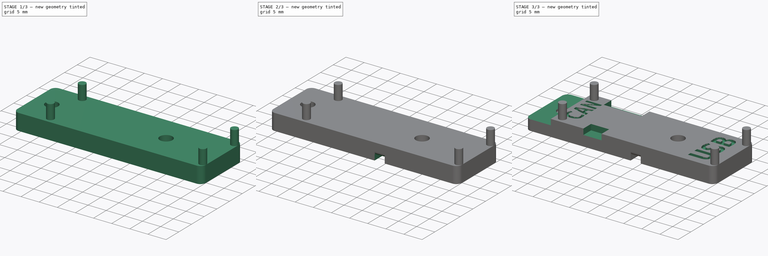
[diagram: build sequence overview — one tinted view per stage of 3, left to right]
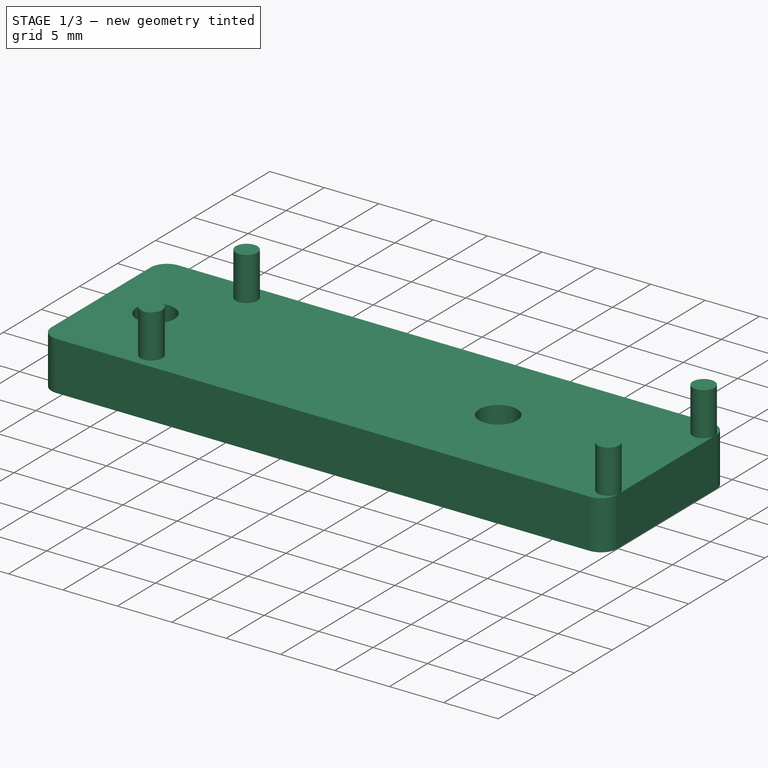
[diagram: stage 1 of 3 — iso view after this stage's code; geometry added in this stage tinted green]
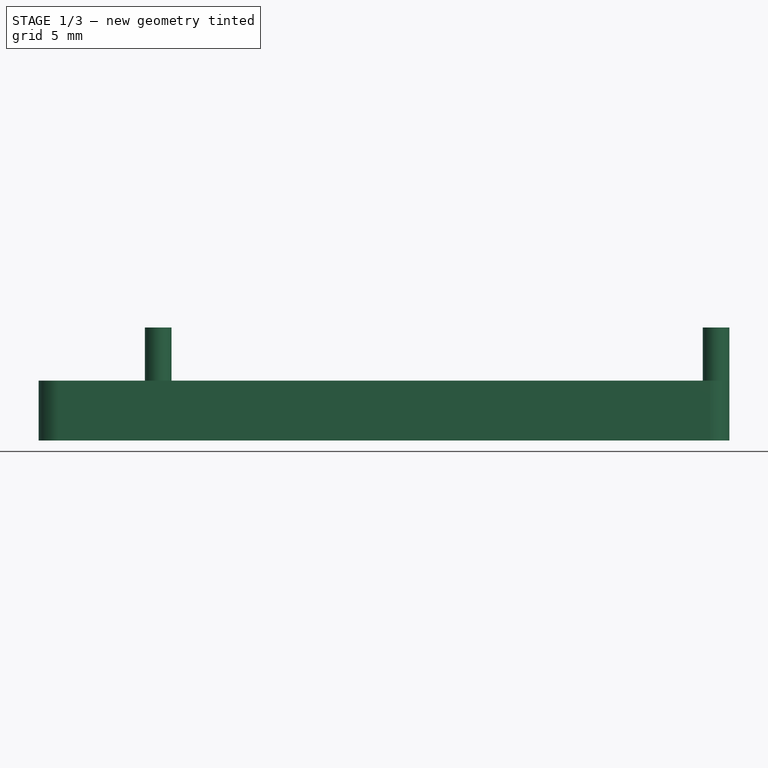
[diagram: stage 1 of 3 — front view after this stage's code; geometry added in this stage tinted green]
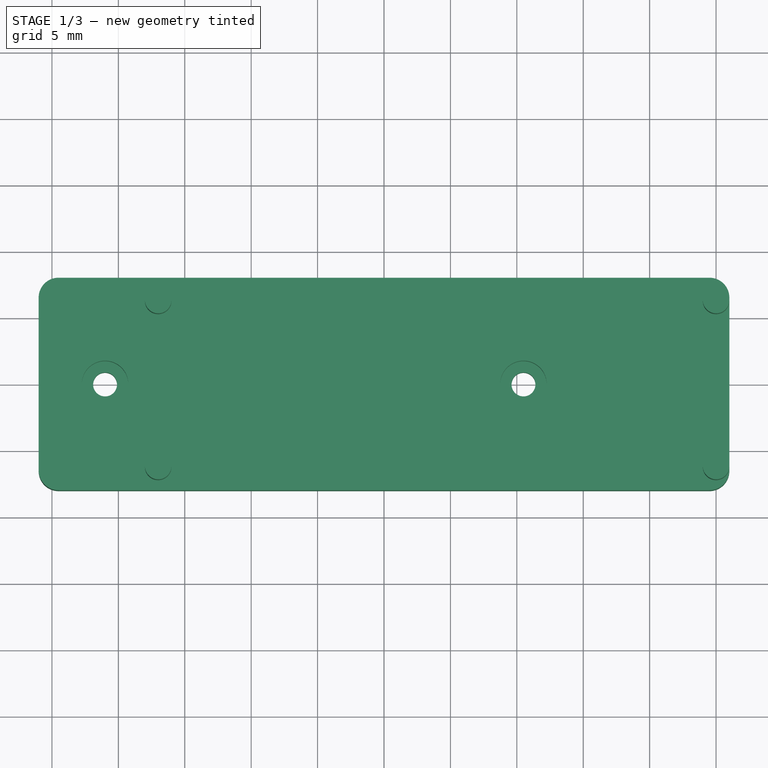
[diagram: stage 1 of 3 — top view after this stage's code; geometry added in this stage tinted green]
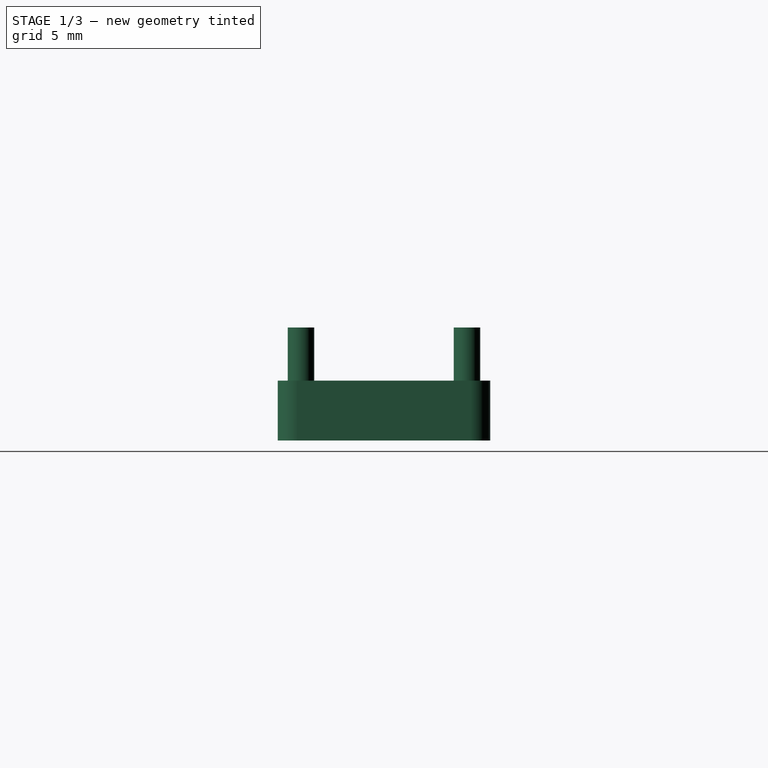
[diagram: stage 1 of 3 — right view after this stage's code; geometry added in this stage tinted green]
FCSTD DOCUMENT  (FreeCAD 2023.811R14555 (Git shallow))
Label: MKS_canable_pro_2.0_RailMount
License: All rights reserved
objects: Sketcher::SketchObject×5, PartDesign::Pocket×5, PartDesign::Pad×2, Part::Part2DObjectPython×2, PartDesign::Fillet×1, PartDesign::Body×1
note: 37 computed .brp shape members not serialized (recipe doc carries the construction recipe); baked Part::Feature solids carry a one-line shape summary decoded from their .brp

FEATURE [Sketcher::SketchObject] Sketch
  ArcFitTolerance = 1e-06
  AttachmentSupport = -> [XY_Plane]
  ExternalBSplineMaxDegree = 5
  ExternalBSplineTolerance = 0.0001
  FullyConstrained = true
  InternalTolerance = 1e-06
  InvalidShape = false
  MakeInternals = false
  MapMode = 5
  Support = -> [XY_Plane]
  TreeRank = 11
  ValidateShape = false
  sketch-geometry (12):
    g0: ArcOfCircle CenterX=-24.5 CenterY=6.5 CenterZ=0 NormalX=0 NormalY=0 NormalZ=1 AngleXU=0 Radius=1.5 StartAngle=1.5708 EndAngle=3.14159
    g1: LineSegment StartX=-24.5 StartY=8 StartZ=0 EndX=24.5 EndY=8 EndZ=0
    g2: ArcOfCircle CenterX=24.5 CenterY=6.5 CenterZ=0 NormalX=0 NormalY=0 NormalZ=1 AngleXU=0 Radius=1.5 StartAngle=0 EndAngle=1.5708
    g3: LineSegment StartX=26 StartY=6.5 StartZ=0 EndX=26 EndY=-6.5 EndZ=0
    g4: ArcOfCircle CenterX=24.5 CenterY=-6.5 CenterZ=0 NormalX=0 NormalY=0 NormalZ=1 AngleXU=0 Radius=1.5 StartAngle=4.71239 EndAngle=6.28319
    g5: LineSegment StartX=24.5 StartY=-8 StartZ=0 EndX=-24.5 EndY=-8 EndZ=0
    g6: ArcOfCircle CenterX=-24.5 CenterY=-6.5 CenterZ=0 NormalX=0 NormalY=0 NormalZ=1 AngleXU=0 Radius=1.5 StartAngle=3.14159 EndAngle=4.71239
    g7: LineSegment StartX=-26 StartY=-6.5 StartZ=0 EndX=-26 EndY=6.5 EndZ=0
    g8: GeomPoint [constr] X=-26 Y=8 Z=0
    g9: GeomPoint [constr] X=26 Y=-8 Z=0
    g10: Circle CenterX=-21 CenterY=0 CenterZ=0 NormalX=0 NormalY=0 NormalZ=1 AngleXU=0 Radius=0.9
    g11: Circle CenterX=10.5 CenterY=0 CenterZ=0 NormalX=0 NormalY=0 NormalZ=1 AngleXU=0 Radius=0.9
  constraints (29):
    c: Tangent(g0,g1) = 1.5708
    c: Tangent(g1,g2) = 1.5708
    c: Tangent(g2,g3) = 1.5708
    c: Tangent(g3,g4) = 1.5708
    c: Tangent(g4,g5) = 1.5708
    c: Tangent(g5,g6) = 1.5708
    c: Tangent(g6,g7) = 1.5708
    c: Tangent(g7,g0) = 1.5708
    c: Horizontal(g1)
    c: Horizontal(g5)
    c: Vertical(g3)
    c: Vertical(g7)
    c: Equal(g0,g2)
    c: Equal(g2,g4)
    c: Equal(g4,g6)
    c: PointOnObject(g8,g1)
    c: PointOnObject(g8,g7)
    c: PointOnObject(g9,g3)
    c: PointOnObject(g9,g5)
    c: Symmetric(g4,g0,g-1)
    c: DistanceY(g5,g0) = 16
    c: DistanceX(g6,g3) = 52
    c: Radius(g2) = 1.5
    c: PointOnObject(g10,g-1)
    c: PointOnObject(g11,g-1)
    c: DistanceX(g10,g11) = 31.5
    c: Equal(g11,g10)
    c: Diameter(g11) = 1.8
    c: DistanceX(g6,g10) = 5
FEATURE [PartDesign::Pad] Pad  label="Base_pd"
  AddSubType = 0
  AlongSketchNormal = false
  AutoTaperInnerAngle = true
  CheckUpToFaceLimits = true
  ClaimChildren = false
  Direction = (0,0,1)
  Fit = 0
  FitJoin = 0
  InnerFit = 0
  InnerFitJoin = 0
  InvalidShape = false
  Length = 4.5
  Length2 = 10
  Linearize = true
  NewSolid = false
  Profile = -> Sketch
  ReferenceAxis = -> Sketch [N_Axis]
  Suppress = false
  TaperInnerAngle = 0
  TaperInnerAngleRev = 0
  TreeRank = 12
  Type = 0
  ValidateShape = true
  _ProfileBasedVersion = 1
FEATURE [Sketcher::SketchObject] Sketch001
  ArcFitTolerance = 1e-06
  AttachmentSupport = -> [Pad]
  ExternalBSplineMaxDegree = 5
  ExternalBSplineTolerance = 0.0001
  ExternalGeometry = -> [Pad]
  FullyConstrained = true
  InternalTolerance = 1e-06
  InvalidShape = false
  MakeInternals = false
  MapMode = 5
  Placement = pos=(0,0,4.5) rot=(0,0,1;0rad)
  Support = -> [Pad]
  TreeRank = 13
  ValidateShape = false
  sketch-geometry (2):
    g0: Circle CenterX=-21 CenterY=0 CenterZ=0 NormalX=0 NormalY=0 NormalZ=1 AngleXU=0 Radius=1.75
    g1: Circle CenterX=10.5 CenterY=0 CenterZ=0 NormalX=0 NormalY=0 NormalZ=1 AngleXU=0 Radius=1.75
  constraints (4):
    c: Coincident(g0,g-3)
    c: Coincident(g1,g-4)
    c: Equal(g0,g1)
    c: Diameter(g1) = 3.5
FEATURE [PartDesign::Pocket] Pocket  label="Counterbore"
  AddSubType = 1
  AlongSketchNormal = false
  AutoTaperInnerAngle = true
  BaseFeature = -> Pad
  CheckUpToFaceLimits = true
  ClaimChildren = false
  Direction = (0,0,-1)
  Fit = 0
  FitJoin = 0
  InnerFit = 0
  InnerFitJoin = 0
  InvalidShape = false
  Length = 2.2
  Length2 = 10
  Linearize = true
  NewSolid = false
  Profile = -> Sketch001
  ReferenceAxis = -> Sketch001 [N_Axis]
  Suppress = false
  TaperInnerAngle = 0
  TaperInnerAngleRev = 0
  TreeRank = 14
  Type = 0
  ValidateShape = true
  _ProfileBasedVersion = 1
  _Version = 1
FEATURE [Sketcher::SketchObject] Sketch002
  ArcFitTolerance = 1e-06
  AttachmentSupport = -> [Pocket]
  ExternalBSplineMaxDegree = 5
  ExternalBSplineTolerance = 0.0001
  ExternalGeometry = -> [Pocket]
  FullyConstrained = true
  InternalTolerance = 1e-06
  InvalidShape = false
  MakeInternals = false
  MapMode = 5
  Placement = pos=(0,0,4.5) rot=(0,0,1;0rad)
  Support = -> [Pocket]
  TreeRank = 15
  ValidateShape = false
  sketch-geometry (4):
    g0: Circle CenterX=-17 CenterY=6.25 CenterZ=0 NormalX=0 NormalY=0 NormalZ=1 AngleXU=0 Radius=1
    g1: Circle CenterX=-17 CenterY=-6.25 CenterZ=0 NormalX=0 NormalY=0 NormalZ=1 AngleXU=0 Radius=1
    g2: Circle CenterX=25 CenterY=6.25 CenterZ=0 NormalX=0 NormalY=0 NormalZ=1 AngleXU=0 Radius=1
    g3: Circle CenterX=25 CenterY=-6.25 CenterZ=0 NormalX=0 NormalY=0 NormalZ=1 AngleXU=0 Radius=1
  constraints (10):
    c: Equal(g2,g1)
    c: Equal(g1,g0)
    c: Equal(g0,g3)
    c: Diameter(g2) = 2
    c: Symmetric(g0,g1,g-1)
    c: Symmetric(g2,g3,g-1)
    c: Horizontal(g0,g2)
    c: DistanceY(g1,g0) = 12.5
    c: DistanceX(g-3,g1) = 9
    c: DistanceX(g-3,g3) = 51
FEATURE [PartDesign::Pad] Pad001  label="LocatinPins_pd"
  AddSubType = 0
  AlongSketchNormal = false
  AutoTaperInnerAngle = true
  BaseFeature = -> Pocket
  CheckUpToFaceLimits = true
  ClaimChildren = false
  Direction = (0,0,1)
  Fit = 0
  FitJoin = 0
  InnerFit = 0
  InnerFitJoin = 0
  InvalidShape = false
  Length = 4
  Length2 = 10
  Linearize = true
  NewSolid = false
  Profile = -> Sketch002
  ReferenceAxis = -> Sketch002 [N_Axis]
  Suppress = false
  TaperInnerAngle = 0
  TaperInnerAngleRev = 0
  TreeRank = 16
  Type = 0
  ValidateShape = true
  _ProfileBasedVersion = 1
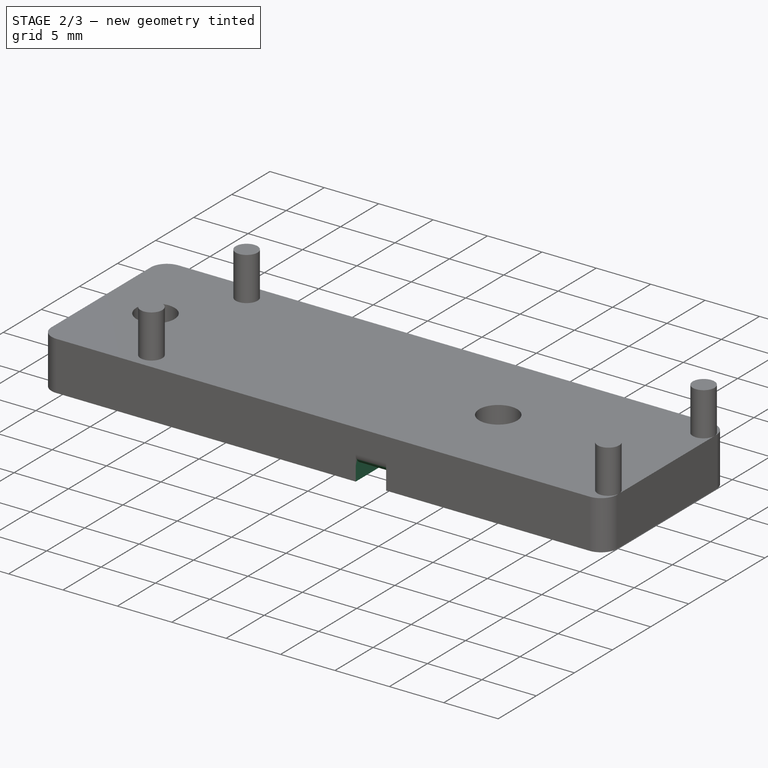
[diagram: stage 2 of 3 — iso view after this stage's code; geometry added in this stage tinted green]
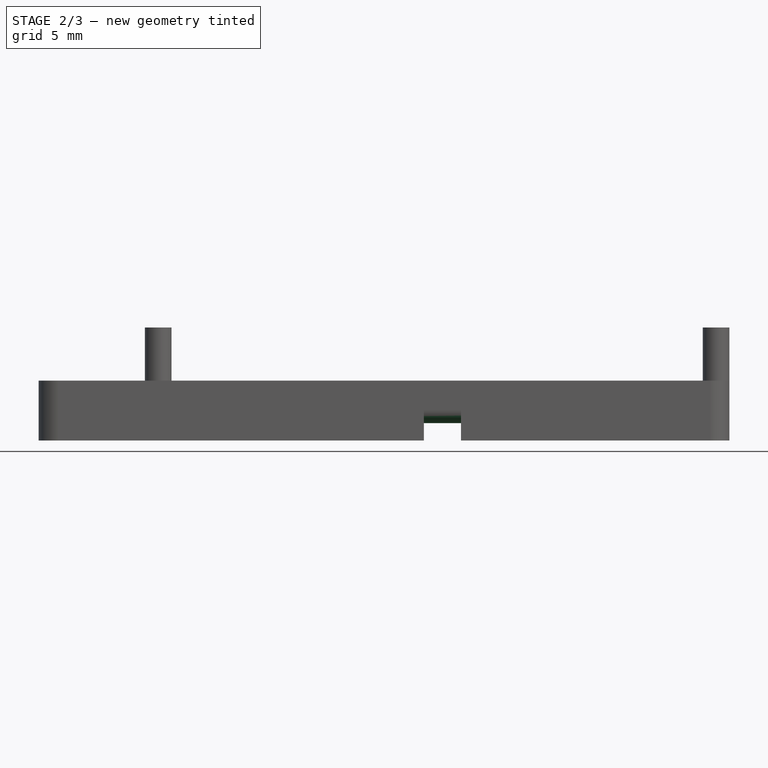
[diagram: stage 2 of 3 — front view after this stage's code; geometry added in this stage tinted green]
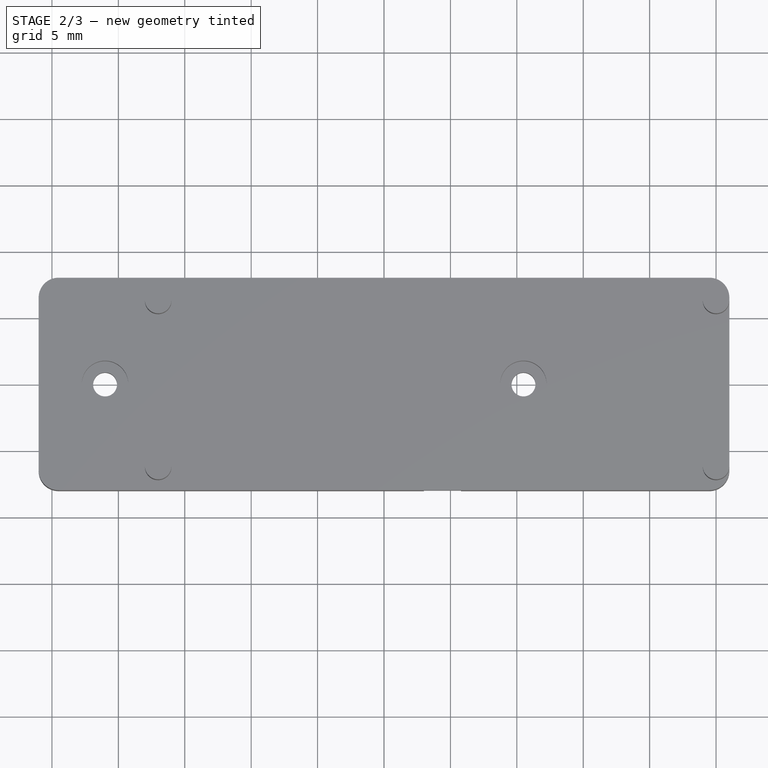
[diagram: stage 2 of 3 — top view after this stage's code; geometry added in this stage tinted green]
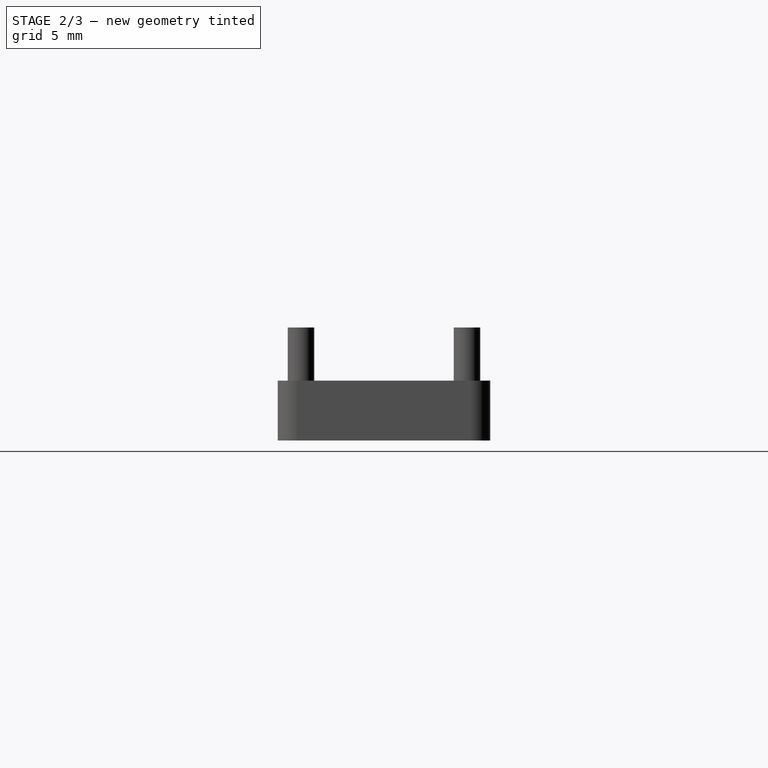
[diagram: stage 2 of 3 — right view after this stage's code; geometry added in this stage tinted green]
FEATURE [Sketcher::SketchObject] Sketch003
  ArcFitTolerance = 1e-06
  AttachmentSupport = -> [Pad001]
  ExternalBSplineMaxDegree = 5
  ExternalBSplineTolerance = 0.0001
  ExternalGeometry = -> [Pad001]
  FullyConstrained = true
  InternalTolerance = 1e-06
  InvalidShape = false
  MakeInternals = false
  MapMode = 5
  Placement = pos=(0,0,0) rot=(1,0,0;3.14159rad)
  Support = -> [Pad001]
  TreeRank = 17
  ValidateShape = false
  sketch-geometry (4):
    g0: LineSegment StartX=3 StartY=8 StartZ=0 EndX=5.8 EndY=8 EndZ=0
    g1: LineSegment StartX=5.8 StartY=8 StartZ=0 EndX=5.8 EndY=-8 EndZ=0
    g2: LineSegment StartX=5.8 StartY=-8 StartZ=0 EndX=3 EndY=-8 EndZ=0
    g3: LineSegment StartX=3 StartY=-8 StartZ=0 EndX=3 EndY=8 EndZ=0
  constraints (12):
    c: Coincident(g0,g1)
    c: Coincident(g1,g2)
    c: Coincident(g2,g3)
    c: Coincident(g3,g0)
    c: Horizontal(g0)
    c: Horizontal(g2)
    c: Vertical(g1)
    c: Vertical(g3)
    c: PointOnObject(g0,g-3)
    c: PointOnObject(g1,g-4)
    c: DistanceX(g0,g-5) = 23
    c: DistanceX(g0,g0) = 2.8
FEATURE [PartDesign::Pocket] Pocket001  label="CableBinder_pocket"
  AddSubType = 1
  AlongSketchNormal = false
  AutoTaperInnerAngle = true
  BaseFeature = -> Pad001
  CheckUpToFaceLimits = true
  ClaimChildren = false
  Direction = (0,0,1)
  Fit = 0
  FitJoin = 0
  InnerFit = 0
  InnerFitJoin = 0
  InvalidShape = false
  Length = 1.3
  Length2 = 10
  Linearize = true
  NewSolid = false
  Profile = -> Sketch003
  ReferenceAxis = -> Sketch003 [N_Axis]
  Suppress = false
  TaperInnerAngle = 0
  TaperInnerAngleRev = 0
  TreeRank = 18
  Type = 0
  ValidateShape = true
  _ProfileBasedVersion = 1
  _Version = 1
FEATURE [PartDesign::Fillet] Fillet
  AddSubType = 0
  Base = -> Pocket001 [Edge34,Edge7]
  BaseFeature = -> Pocket001
  InvalidShape = false
  NewSolid = false
  Radius = 1
  SupportTransform = false
  Suppress = false
  TreeRank = 19
  UseAllEdges = false
  ValidateShape = true
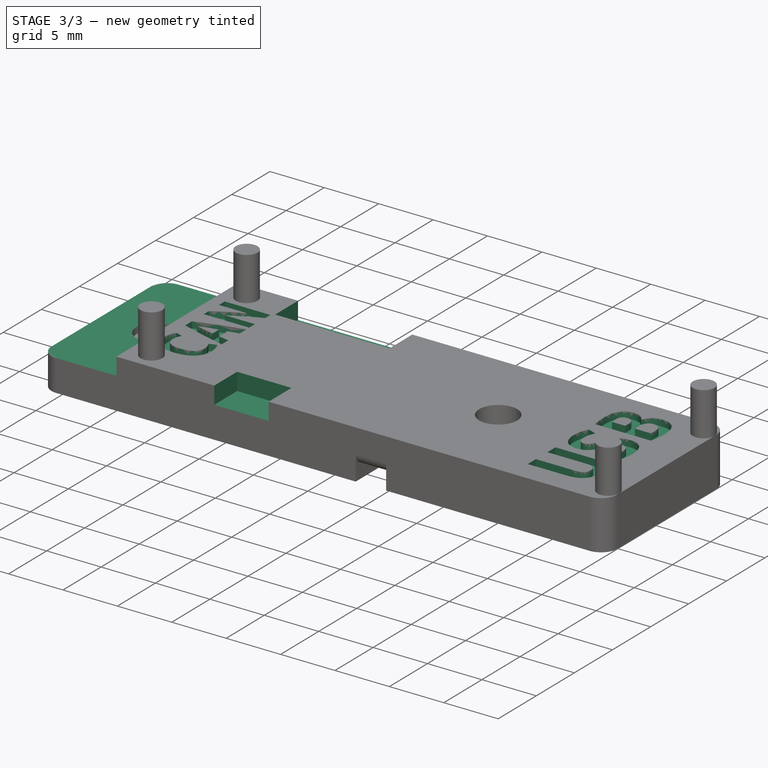
[diagram: stage 3 of 3 — iso view after this stage's code; geometry added in this stage tinted green]
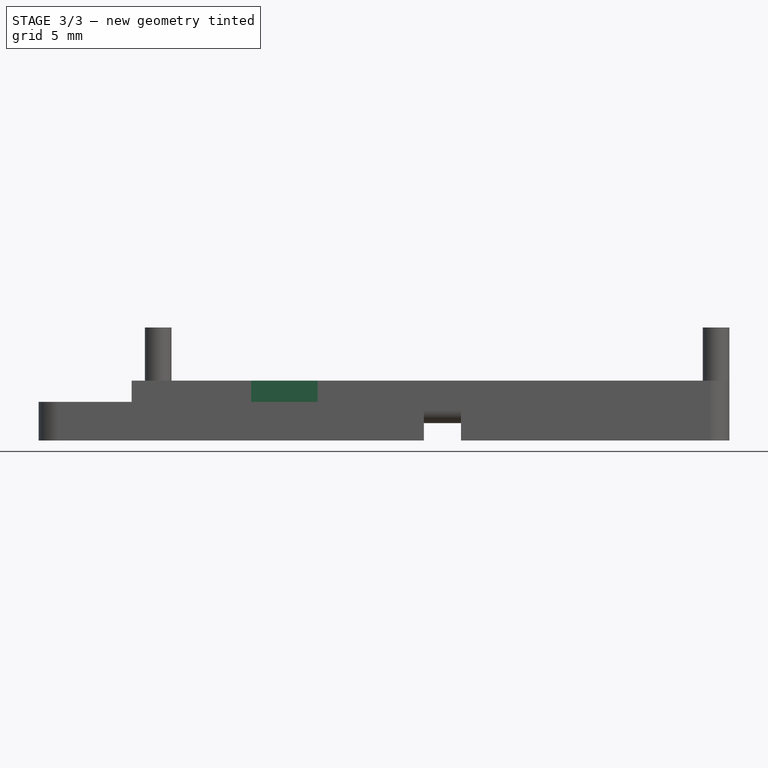
[diagram: stage 3 of 3 — front view after this stage's code; geometry added in this stage tinted green]
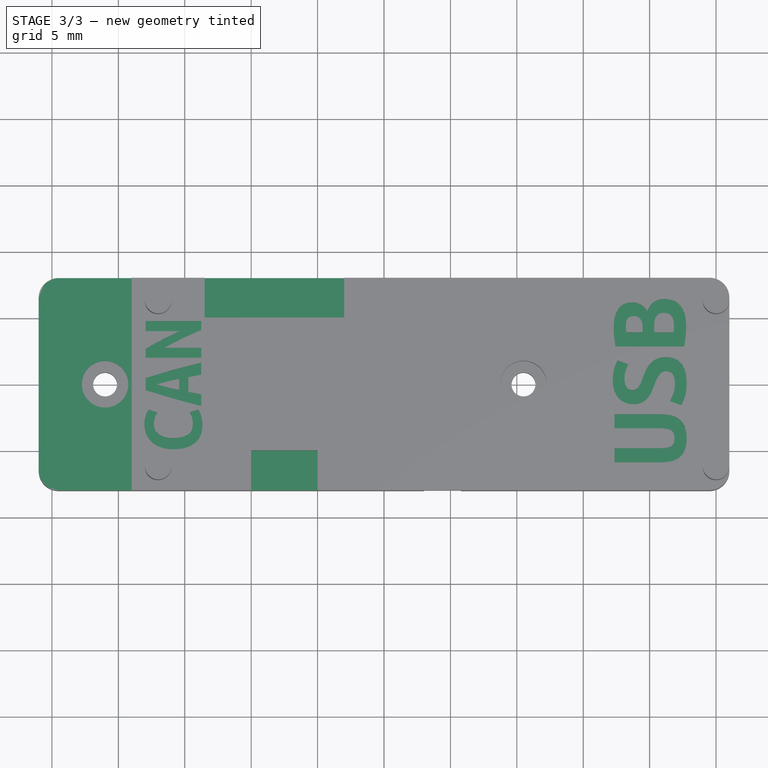
[diagram: stage 3 of 3 — top view after this stage's code; geometry added in this stage tinted green]
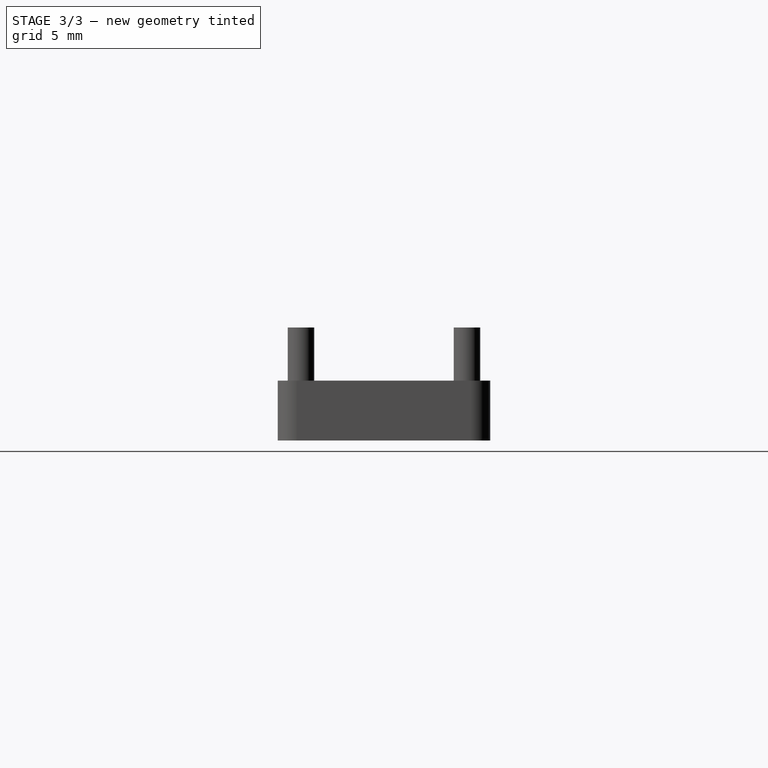
[diagram: stage 3 of 3 — right view after this stage's code; geometry added in this stage tinted green]
FEATURE [Part::Part2DObjectPython] ShapeString  label="Text_USB"  # Draft 2D object (typed FeaturePython)
  FontFile = <path>
  InvalidShape = false
  MakeFace = true
  Placement = pos=(22.672,-6.245,4.5) rot=(0,0,-1;4.71239rad)
  Size = 2.8
  String = USB
  Tracking = 0
  TreeRank = 20
  ValidateShape = false
FEATURE [Part::Part2DObjectPython] ShapeString001  label="Text_CAN"  # Draft 2D object (typed FeaturePython)
  FontFile = <path>
  InvalidShape = false
  MakeFace = true
  Placement = pos=(-13.76,-5.1,4.5) rot=(0,0,1;1.5708rad)
  Size = 2.2
  String = CAN
  Tracking = 0
  TreeRank = 21
  ValidateShape = false
FEATURE [PartDesign::Pocket] Pocket002  label="Text_USB_pocket"
  AddSubType = 1
  AutoTaperInnerAngle = true
  BaseFeature = -> Fillet
  CheckUpToFaceLimits = true
  ClaimChildren = false
  Direction = (0,0,-1)
  Fit = 0
  FitJoin = 0
  InnerFit = 0
  InnerFitJoin = 0
  InvalidShape = false
  Length = 0.6
  Length2 = 10
  Linearize = true
  NewSolid = false
  Profile = -> ShapeString
  ReferenceAxis = -> ShapeString [N_Axis]
  Suppress = false
  TaperInnerAngle = 0
  TaperInnerAngleRev = 0
  TreeRank = 22
  Type = 0
  UseCustomVector = true
  ValidateShape = true
  _ProfileBasedVersion = 1
  _Version = 1
FEATURE [PartDesign::Pocket] Pocket003  label="Text_CAN_pocket"
  AddSubType = 1
  AlongSketchNormal = false
  AutoTaperInnerAngle = true
  BaseFeature = -> Pocket002
  CheckUpToFaceLimits = true
  ClaimChildren = false
  Direction = (0,0,-1)
  Fit = 0
  FitJoin = 0
  InnerFit = 0
  InnerFitJoin = 0
  InvalidShape = false
  Length = 0.6
  Length2 = 10
  Linearize = true
  NewSolid = false
  Profile = -> ShapeString001
  ReferenceAxis = -> ShapeString001 [N_Axis]
  Suppress = false
  TaperInnerAngle = 0
  TaperInnerAngleRev = 0
  TreeRank = 23
  Type = 0
  ValidateShape = true
  _ProfileBasedVersion = 1
  _Version = 1
FEATURE [Sketcher::SketchObject] Sketch004
  ArcFitTolerance = 1e-06
  AttachmentSupport = -> [Pocket003]
  ExternalBSplineMaxDegree = 5
  ExternalBSplineTolerance = 0.0001
  ExternalGeometry = -> [Pocket003]
  FullyConstrained = true
  InternalTolerance = 1e-06
  InvalidShape = false
  MakeInternals = false
  MapMode = 5
  Placement = pos=(0,0,4.5) rot=(0,0,1;0rad)
  Support = -> [Pocket003]
  TreeRank = 24
  ValidateShape = false
  sketch-geometry (15):
    g0: ArcOfCircle CenterX=-24.5 CenterY=6.5 CenterZ=0 NormalX=0 NormalY=0 NormalZ=1 AngleXU=0 Radius=1.5 StartAngle=1.5708 EndAngle=3.14159
    g1: LineSegment StartX=-24.5 StartY=8 StartZ=0 EndX=-19 EndY=8 EndZ=0
    g2: LineSegment StartX=-19 StartY=8 StartZ=0 EndX=-19 EndY=-8 EndZ=0
    g3: LineSegment StartX=-19 StartY=-8 StartZ=0 EndX=-24.5 EndY=-8 EndZ=0
    g4: ArcOfCircle CenterX=-24.5 CenterY=-6.5 CenterZ=0 NormalX=0 NormalY=0 NormalZ=1 AngleXU=0 Radius=1.5 StartAngle=3.14159 EndAngle=4.71239
    g5: LineSegment StartX=-26 StartY=-6.5 StartZ=0 EndX=-26 EndY=6.5 EndZ=0
    g6: GeomPoint [constr] X=-19 Y=-8 Z=0
    g7: LineSegment StartX=-10 StartY=-5 StartZ=0 EndX=-5 EndY=-5 EndZ=0
    g8: LineSegment StartX=-5 StartY=-5 StartZ=0 EndX=-5 EndY=-8 EndZ=0
    g9: LineSegment StartX=-5 StartY=-8 StartZ=0 EndX=-10 EndY=-8 EndZ=0
    g10: LineSegment StartX=-10 StartY=-8 StartZ=0 EndX=-10 EndY=-5 EndZ=0
    g11: LineSegment StartX=-13.5 StartY=8 StartZ=0 EndX=-3 EndY=8 EndZ=0
    g12: LineSegment StartX=-3 StartY=8 StartZ=0 EndX=-3 EndY=5 EndZ=0
    g13: LineSegment StartX=-3 StartY=5 StartZ=0 EndX=-13.5 EndY=5 EndZ=0
    g14: LineSegment StartX=-13.5 StartY=5 StartZ=0 EndX=-13.5 EndY=8 EndZ=0
  constraints (40):
    c: Tangent(g0,g1) = 1.5708
    c: Tangent(g3,g4) = 1.5708
    c: Tangent(g4,g5) = 1.5708
    c: Tangent(g5,g0) = 1.5708
    c: Horizontal(g1)
    c: Horizontal(g3)
    c: Vertical(g2)
    c: Vertical(g5)
    c: PointOnObject(g6,g2)
    c: PointOnObject(g6,g3)
    c: Coincident(g0,g-4)
    c: Coincident(g7,g8)
    c: Coincident(g8,g9)
    c: Coincident(g9,g10)
    c: Coincident(g10,g7)
    c: Horizontal(g7)
    c: Horizontal(g9)
    c: Vertical(g8)
    c: Vertical(g10)
    c: PointOnObject(g8,g-7)
    c: DistanceX(g4,g7) = 16
    c: DistanceX(g4,g7) = 21
    c: DistanceY(g8,g8) = 3
    c: Coincident(g11,g12)
    c: Coincident(g12,g13)
    c: Coincident(g13,g14)
    c: Coincident(g14,g11)
    c: Horizontal(g11)
    c: Horizontal(g13)
    c: Vertical(g12)
    c: Vertical(g14)
    c: PointOnObject(g11,g-3)
    c: DistanceY(g12,g12) = 3
    c: DistanceX(g0,g13) = 12.5
    c: DistanceX(g0,g12) = 23
    c: Coincident(g1,g2)
    c: Coincident(g3,g2)
    c: DistanceX(g0,g1) = 7
    c: Coincident(g4,g-6)
    c: Horizontal(g0,g-4)
FEATURE [PartDesign::Pocket] Pocket004
  AddSubType = 1
  AlongSketchNormal = false
  AutoTaperInnerAngle = true
  BaseFeature = -> Pocket003
  CheckUpToFaceLimits = true
  ClaimChildren = false
  Direction = (0,0,-1)
  Fit = 0
  FitJoin = 0
  InnerFit = 0
  InnerFitJoin = 0
  InvalidShape = false
  Length = 1.6
  Length2 = 10
  Linearize = true
  NewSolid = false
  Profile = -> Sketch004
  ReferenceAxis = -> Sketch004 [N_Axis]
  Suppress = false
  TaperInnerAngle = 0
  TaperInnerAngleRev = 0
  TreeRank = 25
  Type = 0
  ValidateShape = true
  _ProfileBasedVersion = 1
  _Version = 1
FEATURE [PartDesign::Body] Body
  AutoGroupSolids = false
  ClaimAllChildren = false
  ExportMode = 0
  Group = -> [Sketch,Pad,Sketch001,Pocket,Sketch002,Pad001,Sketch003,Pocket001,Fillet,ShapeString,ShapeString001,Pocket002,Pocket003,Sketch004,Pocket004]
  InvalidShape = false
  Origin = -> Origin
  Tip = -> Pocket004
  TreeRank = 10
  ValidateShape = false
  _ExportChildren = -> [Pad,Pocket,Pad001,Pocket001,Fillet,Pocket002,Pocket003,Pocket004]
  _GroupVersion = 1
note: 2 file-system paths scrubbed to <path> (originals preserved in the JSON sidecar)
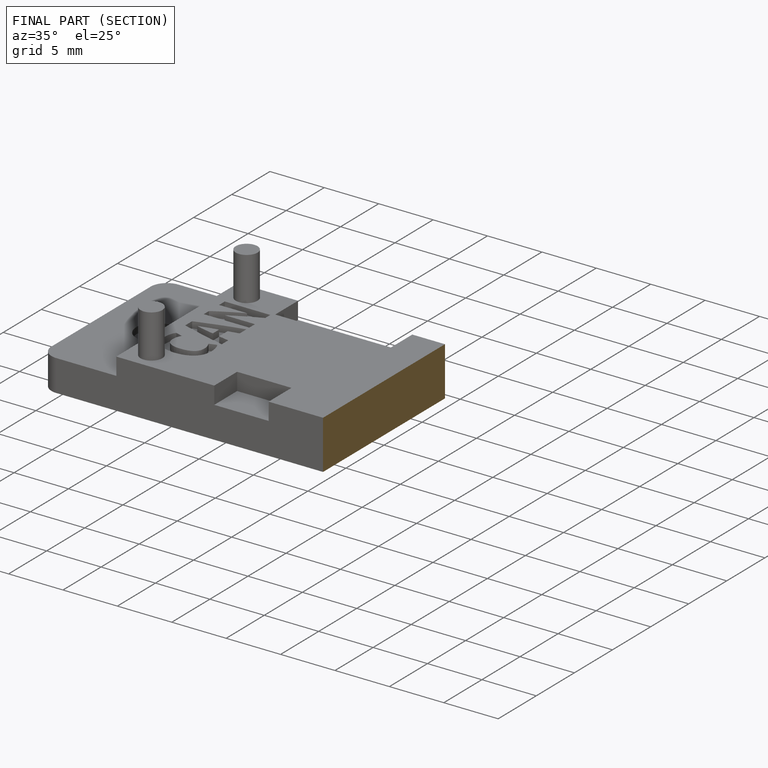
[diagram: finished part — half-section view (interior)]
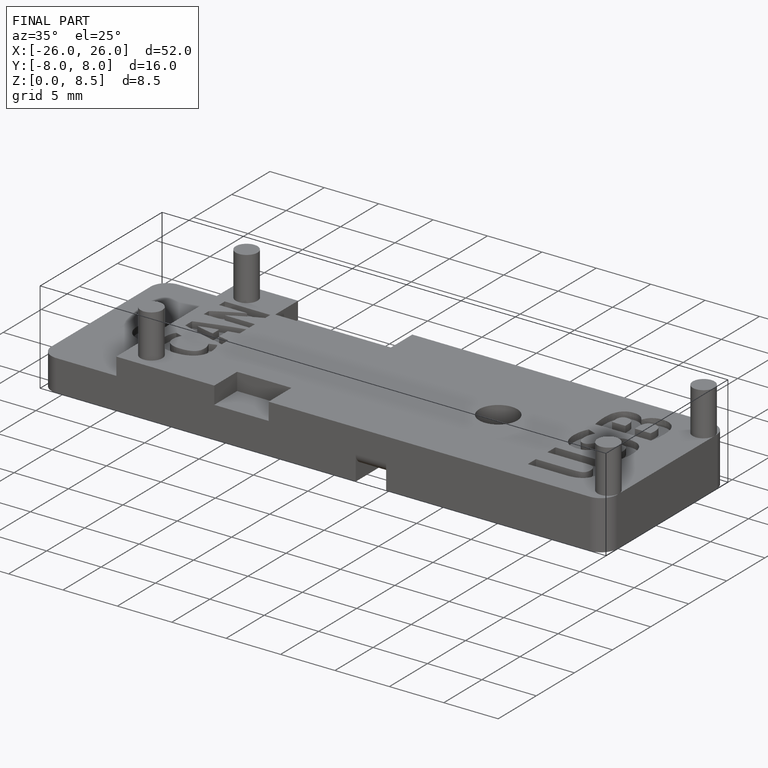
[diagram: finished part — iso view with bounding-box wireframe]
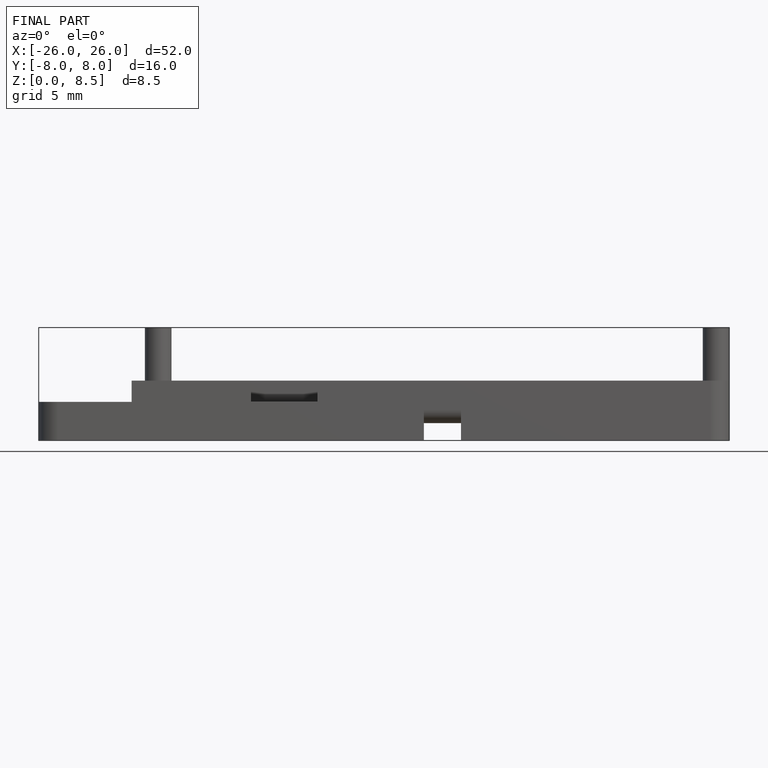
[diagram: finished part — front view with bounding-box wireframe]
